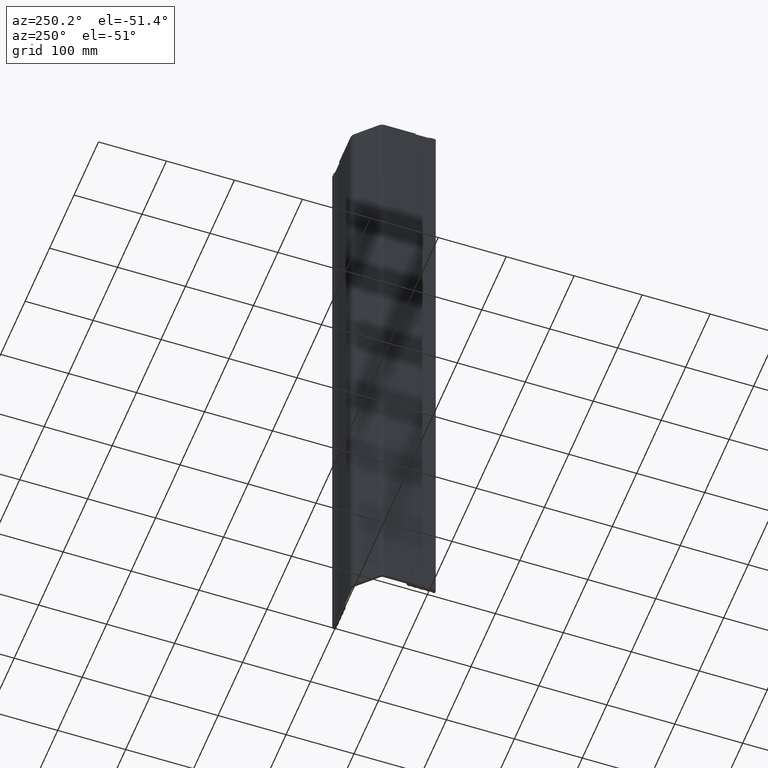
[diagram: clean part render]
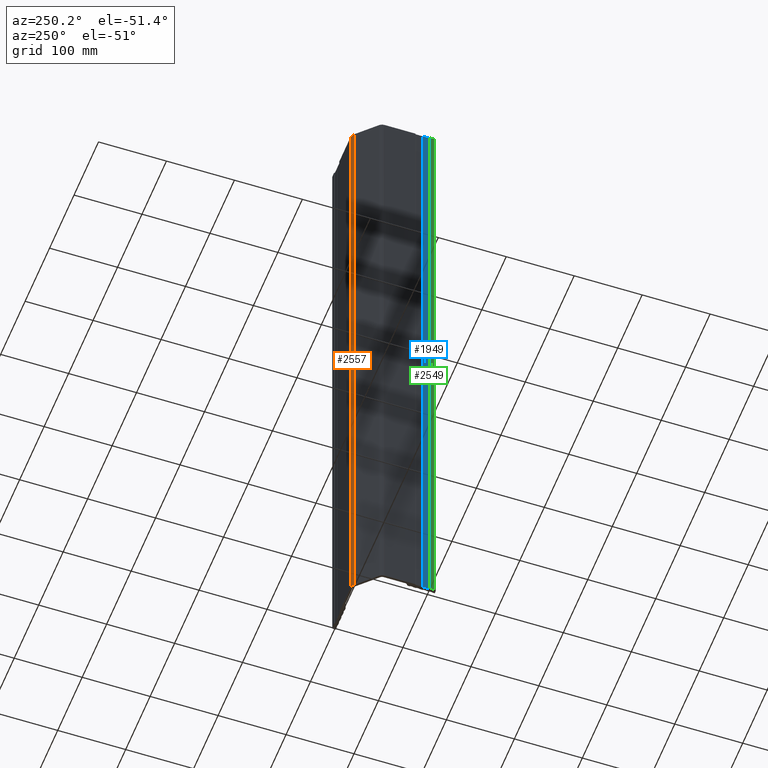
[diagram: same view with three faces highlighted in distinct colors, each labeled with its STEP entity id]
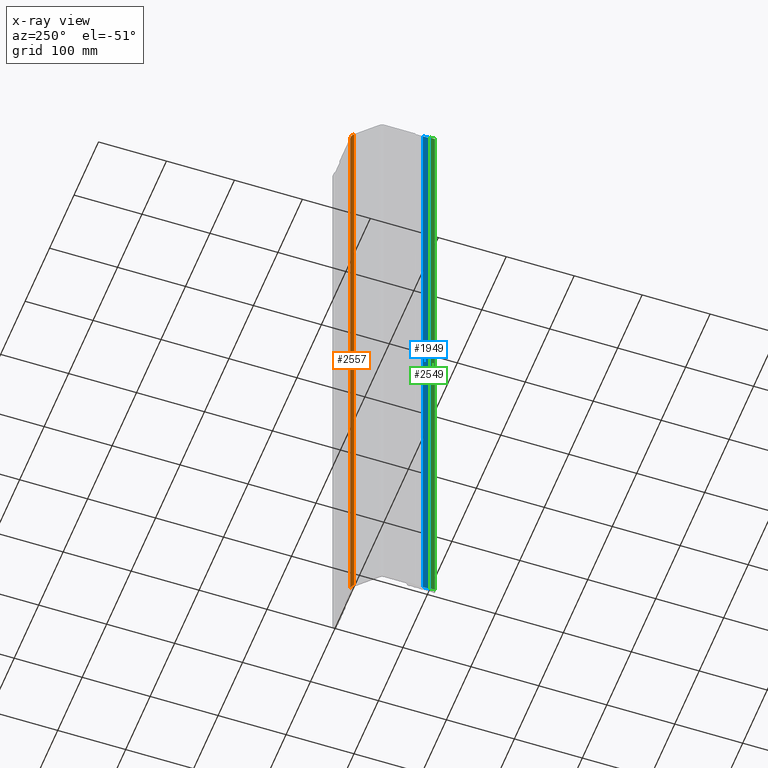
[diagram: x-ray of the same camera — body ghosted, the three highlighted faces saturated]
A machine part, auxiliary view with three faces highlighted in distinct colors.
The next image is the same camera in x-ray (body ghosted, the three faces saturated) — at least one of them is partly hidden behind the body in this view.
Their STEP definitions:

[orange] entity #2557 — the highlighted cylindrical surface (edge-blend (fillet) strip) has radius 10 mm, axis along (-0, -0, -1).
#96 = AXIS2_PLACEMENT_3D ( 'NONE', #420, #612, #1417 ) ;
#272 = ORIENTED_EDGE ( 'NONE', *, *, #1254, .F. ) ;
#294 = CARTESIAN_POINT ( 'NONE',  ( 29.82842712474618500, -2.928932188134529400, 500.0000000000000000 ) ) ;
#342 = LINE ( 'NONE', #294, #852 ) ;
#393 = CYLINDRICAL_SURFACE ( 'NONE', #96, 9.999999999999998200 ) ;
#420 = CARTESIAN_POINT ( 'NONE',  ( 36.89949493661166000, -10.00000000000000000, 500.0000000000000000 ) ) ;
#489 = CARTESIAN_POINT ( 'NONE',  ( 36.41141322667243000, -0.01191829006076238600, 500.0000000000000000 ) ) ;
#509 = FACE_OUTER_BOUND ( 'NONE', #2182, .T. ) ;
#612 = DIRECTION ( 'NONE',  ( -0.0000000000000000000, -0.0000000000000000000, -1.000000000000000000 ) ) ;
#685 = DIRECTION ( 'NONE',  ( 0.0000000000000000000, 0.0000000000000000000, 1.000000000000000000 ) ) ;
#852 = VECTOR ( 'NONE', #2506, 1000.000000000000000 ) ;
#1017 = AXIS2_PLACEMENT_3D ( 'NONE', #2352, #1133, #2551 ) ;
#1085 = DIRECTION ( 'NONE',  ( -0.0000000000000000000, -0.0000000000000000000, -1.000000000000000000 ) ) ;
#1133 = DIRECTION ( 'NONE',  ( 0.0000000000000000000, 0.0000000000000000000, 1.000000000000000000 ) ) ;
#1167 = CIRCLE ( 'NONE', #1017, 10.00000000000000200 ) ;
#1233 = EDGE_CURVE ( 'NONE', #1346, #2122, #2476, .T. ) ;
#1253 = EDGE_CURVE ( 'NONE', #1346, #2554, #1890, .T. ) ;
#1254 = EDGE_CURVE ( 'NONE', #2122, #2085, #342, .T. ) ;
#1256 = CARTESIAN_POINT ( 'NONE',  ( 29.82842712474618500, -2.928932188134529400, -500.0000000000000000 ) ) ;
#1332 = ORIENTED_EDGE ( 'NONE', *, *, #1233, .F. ) ;
#1338 = VECTOR ( 'NONE', #1085, 1000.000000000000000 ) ;
#1346 = VERTEX_POINT ( 'NONE', #2378 ) ;
#1417 = DIRECTION ( 'NONE',  ( -1.000000000000000000, 0.0000000000000000000, 0.0000000000000000000 ) ) ;
#1462 = CARTESIAN_POINT ( 'NONE',  ( 29.82842712474618500, -2.928932188134529400, 500.0000000000000000 ) ) ;
#1548 = ORIENTED_EDGE ( 'NONE', *, *, #1900, .T. ) ;
#1890 = LINE ( 'NONE', #489, #1338 ) ;
#1900 = EDGE_CURVE ( 'NONE', #2554, #2085, #1167, .T. ) ;
#1920 = CARTESIAN_POINT ( 'NONE',  ( 36.89949493661166000, -10.00000000000000000, 500.0000000000000000 ) ) ;
#2085 = VERTEX_POINT ( 'NONE', #1256 ) ;
#2110 = DIRECTION ( 'NONE',  ( 1.000000000000000000, 0.0000000000000000000, 0.0000000000000000000 ) ) ;
#2122 = VERTEX_POINT ( 'NONE', #1462 ) ;
#2182 = EDGE_LOOP ( 'NONE', ( #1332, #2211, #1548, #272 ) ) ;
#2211 = ORIENTED_EDGE ( 'NONE', *, *, #1253, .T. ) ;
#2311 = AXIS2_PLACEMENT_3D ( 'NONE', #1920, #685, #2110 ) ;
#2352 = CARTESIAN_POINT ( 'NONE',  ( 36.89949493661166000, -10.00000000000000000, -500.0000000000000000 ) ) ;
#2378 = CARTESIAN_POINT ( 'NONE',  ( 36.41141322667242300, -0.01191829006075715100, 500.0000000000000000 ) ) ;
#2430 = CARTESIAN_POINT ( 'NONE',  ( 36.41141322667242300, -0.01191829006075715100, -500.0000000000000000 ) ) ;
#2476 = CIRCLE ( 'NONE', #2311, 10.00000000000000200 ) ;
#2506 = DIRECTION ( 'NONE',  ( -0.0000000000000000000, -0.0000000000000000000, -1.000000000000000000 ) ) ;
#2551 = DIRECTION ( 'NONE',  ( 1.000000000000000000, 0.0000000000000000000, 0.0000000000000000000 ) ) ;
#2554 = VERTEX_POINT ( 'NONE', #2430 ) ;
#2557 = ADVANCED_FACE ( 'NONE', ( #509 ), #393, .T. ) ;

[blue] entity #1949 — the highlighted planar face has unit normal (1, 0, -0).
#41 = LINE ( 'NONE', #2033, #2198 ) ;
#79 = LINE ( 'NONE', #1564, #493 ) ;
#215 = PLANE ( 'NONE',  #486 ) ;
#243 = EDGE_LOOP ( 'NONE', ( #1942, #514, #2416, #1154 ) ) ;
#283 = CARTESIAN_POINT ( 'NONE',  ( 0.9999999999999792400, -93.50000000000000000, -500.0000000000000000 ) ) ;
#403 = VERTEX_POINT ( 'NONE', #2563 ) ;
#486 = AXIS2_PLACEMENT_3D ( 'NONE', #2604, #1841, #608 ) ;
#493 = VECTOR ( 'NONE', #2373, 1000.000000000000000 ) ;
#514 = ORIENTED_EDGE ( 'NONE', *, *, #1530, .F. ) ;
#598 = DIRECTION ( 'NONE',  ( -0.0000000000000000000, -0.0000000000000000000, -1.000000000000000000 ) ) ;
#608 = DIRECTION ( 'NONE',  ( -3.925953129842255500E-015, 1.000000000000000000, 0.0000000000000000000 ) ) ;
#639 = LINE ( 'NONE', #1001, #1671 ) ;
#815 = DIRECTION ( 'NONE',  ( -0.0000000000000000000, -0.0000000000000000000, -1.000000000000000000 ) ) ;
#997 = EDGE_CURVE ( 'NONE', #403, #1249, #79, .T. ) ;
#1001 = CARTESIAN_POINT ( 'NONE',  ( 0.9999999999999792400, -93.50000000000000000, -500.0000000000000000 ) ) ;
#1154 = ORIENTED_EDGE ( 'NONE', *, *, #1512, .T. ) ;
#1172 = LINE ( 'NONE', #1827, #2317 ) ;
#1199 = DIRECTION ( 'NONE',  ( 3.925953129842255500E-015, -1.000000000000000000, 0.0000000000000000000 ) ) ;
#1202 = VERTEX_POINT ( 'NONE', #283 ) ;
#1249 = VERTEX_POINT ( 'NONE', #1715 ) ;
#1270 = CARTESIAN_POINT ( 'NONE',  ( 1.000000000000016400, -102.9999999999999900, -500.0000000000000000 ) ) ;
#1512 = EDGE_CURVE ( 'NONE', #403, #1202, #1172, .T. ) ;
#1523 = EDGE_CURVE ( 'NONE', #1202, #2150, #639, .T. ) ;
#1530 = EDGE_CURVE ( 'NONE', #1249, #2150, #41, .T. ) ;
#1564 = CARTESIAN_POINT ( 'NONE',  ( 0.9999999999999792400, -93.50000000000000000, 500.0000000000000000 ) ) ;
#1671 = VECTOR ( 'NONE', #1199, 1000.000000000000000 ) ;
#1715 = CARTESIAN_POINT ( 'NONE',  ( 1.000000000000016400, -102.9999999999999900, 500.0000000000000000 ) ) ;
#1827 = CARTESIAN_POINT ( 'NONE',  ( 0.9999999999999792400, -93.50000000000000000, 500.0000000000000000 ) ) ;
#1841 = DIRECTION ( 'NONE',  ( 1.000000000000000000, 3.925953129842255500E-015, -0.0000000000000000000 ) ) ;
#1942 = ORIENTED_EDGE ( 'NONE', *, *, #1523, .T. ) ;
#1949 = ADVANCED_FACE ( 'NONE', ( #2583 ), #215, .F. ) ;
#2033 = CARTESIAN_POINT ( 'NONE',  ( 1.000000000000016400, -102.9999999999999900, 500.0000000000000000 ) ) ;
#2150 = VERTEX_POINT ( 'NONE', #1270 ) ;
#2198 = VECTOR ( 'NONE', #815, 1000.000000000000000 ) ;
#2317 = VECTOR ( 'NONE', #598, 1000.000000000000000 ) ;
#2373 = DIRECTION ( 'NONE',  ( 3.925953129842255500E-015, -1.000000000000000000, 0.0000000000000000000 ) ) ;
#2416 = ORIENTED_EDGE ( 'NONE', *, *, #997, .F. ) ;
#2563 = CARTESIAN_POINT ( 'NONE',  ( 0.9999999999999792400, -93.50000000000000000, 500.0000000000000000 ) ) ;
#2583 = FACE_OUTER_BOUND ( 'NONE', #243, .T. ) ;
#2604 = CARTESIAN_POINT ( 'NONE',  ( 0.9999999999999792400, -93.50000000000000000, 500.0000000000000000 ) ) ;

[green] entity #2549 — the highlighted planar face has unit normal (1, -0, 0).
#28 = DIRECTION ( 'NONE',  ( -2.007687200832687600E-017, -1.000000000000000000, -0.0000000000000000000 ) ) ;
#83 = VERTEX_POINT ( 'NONE', #2552 ) ;
#105 = AXIS2_PLACEMENT_3D ( 'NONE', #813, #218, #1642 ) ;
#133 = CARTESIAN_POINT ( 'NONE',  ( 1.344410693882025500E-014, -110.9999999999999900, 500.0000000000000000 ) ) ;
#205 = LINE ( 'NONE', #694, #2285 ) ;
#218 = DIRECTION ( 'NONE',  ( 1.000000000000000000, -2.007687200832687600E-017, 0.0000000000000000000 ) ) ;
#251 = ORIENTED_EDGE ( 'NONE', *, *, #1545, .T. ) ;
#400 = LINE ( 'NONE', #1228, #921 ) ;
#411 = VERTEX_POINT ( 'NONE', #1605 ) ;
#538 = ORIENTED_EDGE ( 'NONE', *, *, #1553, .T. ) ;
#659 = ORIENTED_EDGE ( 'NONE', *, *, #740, .F. ) ;
#694 = CARTESIAN_POINT ( 'NONE',  ( 1.344410693882025500E-014, -110.9999999999999900, 500.0000000000000000 ) ) ;
#740 = EDGE_CURVE ( 'NONE', #83, #2210, #2394, .T. ) ;
#813 = CARTESIAN_POINT ( 'NONE',  ( 1.344410693882025500E-014, -110.9999999999999900, 500.0000000000000000 ) ) ;
#900 = VERTEX_POINT ( 'NONE', #1088 ) ;
#921 = VECTOR ( 'NONE', #28, 1000.000000000000000 ) ;
#983 = LINE ( 'NONE', #1425, #2014 ) ;
#1088 = CARTESIAN_POINT ( 'NONE',  ( 1.359313052742837700E-014, -103.5773502691896200, -500.0000000000000000 ) ) ;
#1100 = DIRECTION ( 'NONE',  ( -0.0000000000000000000, -0.0000000000000000000, -1.000000000000000000 ) ) ;
#1228 = CARTESIAN_POINT ( 'NONE',  ( 1.344410693882025500E-014, -110.9999999999999900, -500.0000000000000000 ) ) ;
#1285 = EDGE_CURVE ( 'NONE', #2210, #411, #205, .T. ) ;
#1425 = CARTESIAN_POINT ( 'NONE',  ( 1.359313052742837700E-014, -103.5773502691896200, 500.0000000000000000 ) ) ;
#1542 = EDGE_LOOP ( 'NONE', ( #538, #2550, #659, #251 ) ) ;
#1545 = EDGE_CURVE ( 'NONE', #83, #900, #983, .T. ) ;
#1551 = DIRECTION ( 'NONE',  ( -2.007687200832687600E-017, -1.000000000000000000, -0.0000000000000000000 ) ) ;
#1553 = EDGE_CURVE ( 'NONE', #900, #411, #400, .T. ) ;
#1605 = CARTESIAN_POINT ( 'NONE',  ( 1.344410693882025500E-014, -110.9999999999999900, -500.0000000000000000 ) ) ;
#1642 = DIRECTION ( 'NONE',  ( 2.007687200832687600E-017, 1.000000000000000000, 0.0000000000000000000 ) ) ;
#1660 = DIRECTION ( 'NONE',  ( -0.0000000000000000000, -0.0000000000000000000, -1.000000000000000000 ) ) ;
#2014 = VECTOR ( 'NONE', #1660, 1000.000000000000000 ) ;
#2063 = FACE_OUTER_BOUND ( 'NONE', #1542, .T. ) ;
#2210 = VERTEX_POINT ( 'NONE', #2514 ) ;
#2285 = VECTOR ( 'NONE', #1100, 1000.000000000000000 ) ;
#2394 = LINE ( 'NONE', #133, #2457 ) ;
#2457 = VECTOR ( 'NONE', #1551, 1000.000000000000000 ) ;
#2514 = CARTESIAN_POINT ( 'NONE',  ( 1.344410693882025500E-014, -110.9999999999999900, 500.0000000000000000 ) ) ;
#2549 = ADVANCED_FACE ( 'NONE', ( #2063 ), #2605, .F. ) ;
#2550 = ORIENTED_EDGE ( 'NONE', *, *, #1285, .F. ) ;
#2552 = CARTESIAN_POINT ( 'NONE',  ( 1.359313052742837700E-014, -103.5773502691896200, 500.0000000000000000 ) ) ;
#2605 = PLANE ( 'NONE',  #105 ) ;